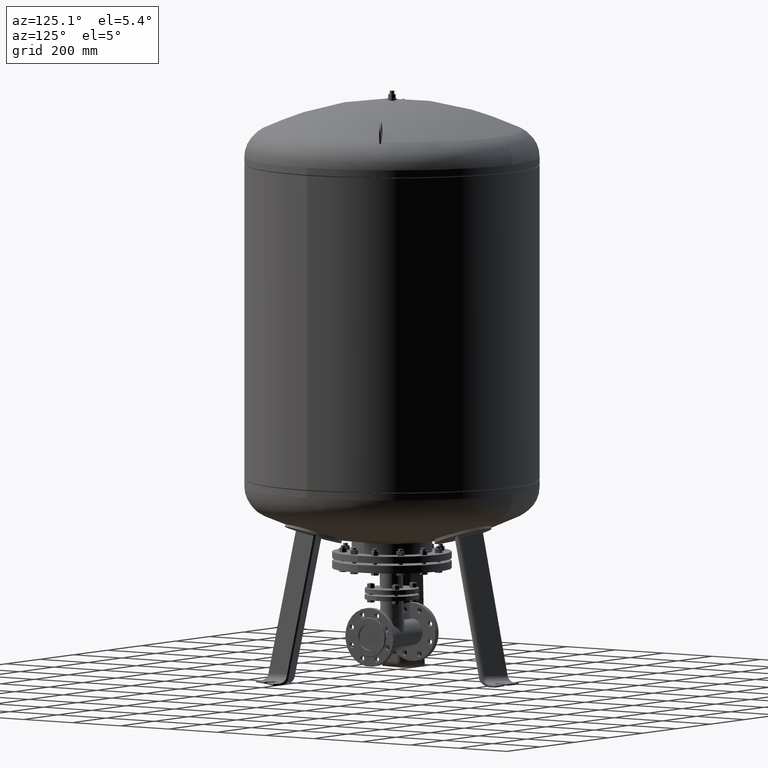
[diagram: clean part render]
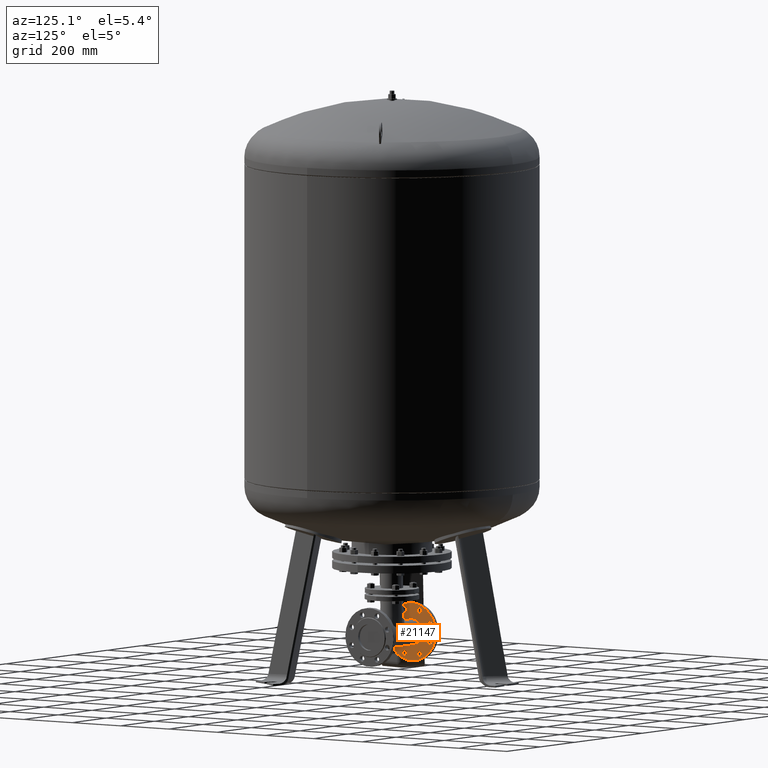
[diagram: same view with one face highlighted and labeled with its STEP entity id]
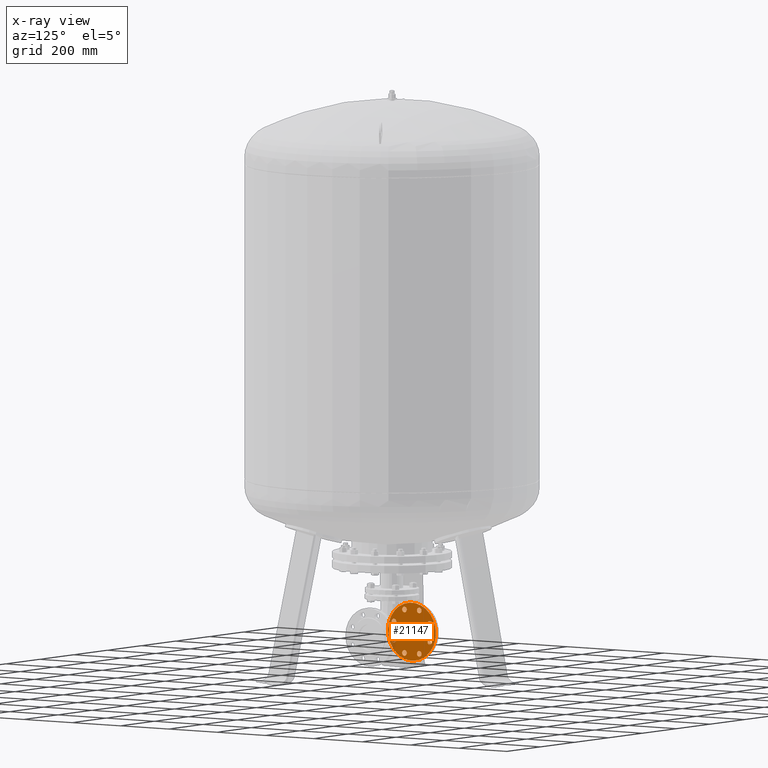
[diagram: x-ray of the same camera — body ghosted, the highlighted face saturated]
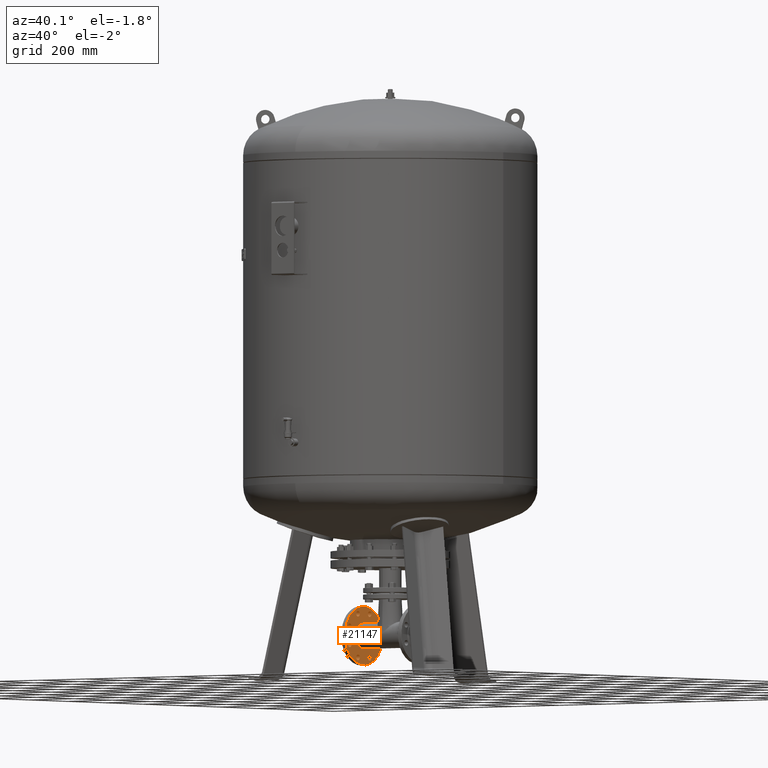
[diagram: same view with one face highlighted and labeled with its STEP entity id]
A machine part, auxiliary view. The second image highlights one B-rep face of the part: STEP entity #21147.
The next image is the same camera in x-ray: the body ghosted, the highlighted face saturated — about 7% of this face is hidden behind the body in this view.
A second angle (auxiliary view) of the same face is appended — the face is thin or edge-on in the first view.
In plain terms, the highlighted face is a freeform B-spline surface patch.
Its self-contained STEP definition (entity closure, byte-faithful):
#20154=CARTESIAN_POINT('',(-117.0,-34.250167196675491,215.133507042045720));
#20155=VERTEX_POINT('',#20154);
#20164=CARTESIAN_POINT('',(-117.000000000000010,-26.979181981738783,232.687218159760160));
#20165=VERTEX_POINT('',#20164);
#20166=CARTESIAN_POINT('',(-117.000000000000010,-30.614674589207137,223.910362600902940));
#20167=DIRECTION('',(1.000000000000000,7.029548E-017,1.697083E-016));
#20168=DIRECTION('',(1.836910E-016,-0.382683432365090,-0.923879532511287));
#20169=AXIS2_PLACEMENT_3D('',#20166,#20167,#20168);
#20170=CIRCLE('',#20169,9.500000000000000);
#20171=EDGE_CURVE('',#20155,#20165,#20170,.T.);
#20217=CARTESIAN_POINT('',(-117.0,-77.545855208371279,171.837819030350000));
#20218=VERTEX_POINT('',#20217);
#20227=CARTESIAN_POINT('',(-117.0,-70.274869993434578,189.391530148064450));
#20228=VERTEX_POINT('',#20227);
#20229=CARTESIAN_POINT('',(-117.0,-73.910362600902928,180.614674589207230));
#20230=DIRECTION('',(1.000000000000000,7.029548E-017,1.697083E-016));
#20231=DIRECTION('',(1.836910E-016,-0.382683432365090,-0.923879532511287));
#20232=AXIS2_PLACEMENT_3D('',#20229,#20230,#20231);
#20233=CIRCLE('',#20232,9.500000000000000);
#20234=EDGE_CURVE('',#20218,#20228,#20233,.T.);
#20280=CARTESIAN_POINT('',(-116.999999999999990,-77.545855208371307,110.608469851935620));
#20281=VERTEX_POINT('',#20280);
#20290=CARTESIAN_POINT('',(-116.999999999999990,-70.274869993434606,128.162180969650080));
#20291=VERTEX_POINT('',#20290);
#20292=CARTESIAN_POINT('',(-116.999999999999990,-73.910362600902957,119.385325410792860));
#20293=DIRECTION('',(1.000000000000000,7.029548E-017,1.697083E-016));
#20294=DIRECTION('',(1.836910E-016,-0.382683432365090,-0.923879532511287));
#20295=AXIS2_PLACEMENT_3D('',#20292,#20293,#20294);
#20296=CIRCLE('',#20295,9.500000000000000);
#20297=EDGE_CURVE('',#20281,#20291,#20296,.T.);
#20343=CARTESIAN_POINT('',(-116.999999999999990,-34.250167196675619,67.312781840239865));
#20344=VERTEX_POINT('',#20343);
#20353=CARTESIAN_POINT('',(-116.999999999999990,-26.979181981738918,84.866492957954307));
#20354=VERTEX_POINT('',#20353);
#20355=CARTESIAN_POINT('',(-116.999999999999990,-30.614674589207269,76.089637399097086));
#20356=DIRECTION('',(1.000000000000000,7.029548E-017,1.697083E-016));
#20357=DIRECTION('',(1.836910E-016,-0.382683432365090,-0.923879532511287));
#20358=AXIS2_PLACEMENT_3D('',#20355,#20356,#20357);
#20359=CIRCLE('',#20358,9.500000000000000);
#20360=EDGE_CURVE('',#20344,#20354,#20359,.T.);
#20406=CARTESIAN_POINT('',(-116.999999999999990,26.979181981738751,67.312781840239808));
#20407=VERTEX_POINT('',#20406);
#20416=CARTESIAN_POINT('',(-116.999999999999990,34.250167196675456,84.866492957954250));
#20417=VERTEX_POINT('',#20416);
#20418=CARTESIAN_POINT('',(-116.999999999999990,30.614674589207102,76.089637399097029));
#20419=DIRECTION('',(1.000000000000000,7.029548E-017,1.697083E-016));
#20420=DIRECTION('',(1.836910E-016,-0.382683432365090,-0.923879532511287));
#20421=AXIS2_PLACEMENT_3D('',#20418,#20419,#20420);
#20422=CIRCLE('',#20421,9.500000000000000);
#20423=EDGE_CURVE('',#20407,#20417,#20422,.T.);
#20469=CARTESIAN_POINT('',(-117.0,70.274869993434592,110.608469851935600));
#20470=VERTEX_POINT('',#20469);
#20479=CARTESIAN_POINT('',(-117.0,77.545855208371293,128.162180969650050));
#20480=VERTEX_POINT('',#20479);
#20481=CARTESIAN_POINT('',(-117.0,73.910362600902943,119.385325410792820));
#20482=DIRECTION('',(1.000000000000000,7.029548E-017,1.697083E-016));
#20483=DIRECTION('',(1.836910E-016,-0.382683432365090,-0.923879532511287));
#20484=AXIS2_PLACEMENT_3D('',#20481,#20482,#20483);
#20485=CIRCLE('',#20484,9.500000000000000);
#20486=EDGE_CURVE('',#20470,#20480,#20485,.T.);
#20532=CARTESIAN_POINT('',(-117.0,70.274869993434592,171.837819030349950));
#20533=VERTEX_POINT('',#20532);
#20542=CARTESIAN_POINT('',(-117.000000000000010,77.545855208371293,189.391530148064390));
#20543=VERTEX_POINT('',#20542);
#20544=CARTESIAN_POINT('',(-117.000000000000010,73.910362600902943,180.614674589207170));
#20545=DIRECTION('',(1.000000000000000,7.029548E-017,1.697083E-016));
#20546=DIRECTION('',(1.836910E-016,-0.382683432365090,-0.923879532511287));
#20547=AXIS2_PLACEMENT_3D('',#20544,#20545,#20546);
#20548=CIRCLE('',#20547,9.500000000000000);
#20549=EDGE_CURVE('',#20533,#20543,#20548,.T.);
#20595=CARTESIAN_POINT('',(-117.000000000000010,26.979181981738854,215.133507042045720));
#20596=VERTEX_POINT('',#20595);
#20605=CARTESIAN_POINT('',(-117.000000000000010,34.250167196675562,232.687218159760160));
#20606=VERTEX_POINT('',#20605);
#20607=CARTESIAN_POINT('',(-117.000000000000010,30.614674589207208,223.910362600902940));
#20608=DIRECTION('',(1.000000000000000,7.029548E-017,1.697083E-016));
#20609=DIRECTION('',(1.836910E-016,-0.382683432365090,-0.923879532511287));
#20610=AXIS2_PLACEMENT_3D('',#20607,#20608,#20609);
#20611=CIRCLE('',#20610,9.500000000000000);
#20612=EDGE_CURVE('',#20596,#20606,#20611,.T.);
#20893=CARTESIAN_POINT('',(-116.999999999999990,-37.885659804143891,58.535926281382615));
#20894=VERTEX_POINT('',#20893);
#20903=CARTESIAN_POINT('',(-117.0,37.885659804143884,241.464073718617410));
#20904=VERTEX_POINT('',#20903);
#20912=CARTESIAN_POINT('',(-117.0,1.335614E-015,150.0));
#20913=DIRECTION('',(1.000000000000000,7.029548E-017,1.697083E-016));
#20914=DIRECTION('',(-1.836910E-016,0.382683432365083,0.923879532511289));
#20915=AXIS2_PLACEMENT_3D('',#20912,#20913,#20914);
#20916=CIRCLE('',#20915,98.999999999999986);
#20917=EDGE_CURVE('',#20894,#20904,#20916,.T.);
#21001=CARTESIAN_POINT('',(-117.0,1.335614E-015,150.0));
#21002=DIRECTION('',(1.000000000000000,7.029548E-017,1.697083E-016));
#21003=DIRECTION('',(-1.836910E-016,0.382683432365083,0.923879532511289));
#21004=AXIS2_PLACEMENT_3D('',#21001,#21002,#21003);
#21005=CIRCLE('',#21004,98.999999999999986);
#21006=EDGE_CURVE('',#20904,#20894,#21005,.T.);
#21058=CARTESIAN_POINT('',(-117.000000000000030,169.003571337468200,220.003571337468230));
#21059=CARTESIAN_POINT('',(-116.999999999999990,70.003571337468173,-19.003571337468230));
#21060=CARTESIAN_POINT('',(-117.000000000000030,-70.003571337468230,319.003571337468260));
#21061=CARTESIAN_POINT('',(-116.999999999999970,-169.003571337468260,79.996428662531770));
#21062=B_SPLINE_SURFACE_WITH_KNOTS('',1,1,((#21058,#21060),(#21059,#21061)),.UNSPECIFIED.,.F.,.F.,.U.,(2,2),(2,2),(0.0,258.699467045522620),(0.0,258.699467045522570),.UNSPECIFIED.);
#21063=ORIENTED_EDGE('',*,*,#20917,.T.);
#21064=ORIENTED_EDGE('',*,*,#21006,.T.);
#21065=EDGE_LOOP('',(#21063,#21064));
#21066=FACE_OUTER_BOUND('',#21065,.T.);
#21067=ORIENTED_EDGE('',*,*,#20171,.F.);
#21068=CARTESIAN_POINT('',(-117.000000000000010,-30.614674589207137,223.910362600902940));
#21069=DIRECTION('',(1.000000000000000,7.029548E-017,1.697083E-016));
#21070=DIRECTION('',(1.836910E-016,-0.382683432365090,-0.923879532511287));
#21071=AXIS2_PLACEMENT_3D('',#21068,#21069,#21070);
#21072=CIRCLE('',#21071,9.500000000000000);
#21073=EDGE_CURVE('',#20165,#20155,#21072,.T.);
#21074=ORIENTED_EDGE('',*,*,#21073,.F.);
#21075=EDGE_LOOP('',(#21067,#21074));
#21076=FACE_BOUND('',#21075,.T.);
#21077=ORIENTED_EDGE('',*,*,#20234,.F.);
#21078=CARTESIAN_POINT('',(-117.0,-73.910362600902928,180.614674589207230));
#21079=DIRECTION('',(1.000000000000000,7.029548E-017,1.697083E-016));
#21080=DIRECTION('',(1.836910E-016,-0.382683432365090,-0.923879532511287));
#21081=AXIS2_PLACEMENT_3D('',#21078,#21079,#21080);
#21082=CIRCLE('',#21081,9.500000000000000);
#21083=EDGE_CURVE('',#20228,#20218,#21082,.T.);
#21084=ORIENTED_EDGE('',*,*,#21083,.F.);
#21085=EDGE_LOOP('',(#21077,#21084));
#21086=FACE_BOUND('',#21085,.T.);
#21087=ORIENTED_EDGE('',*,*,#20297,.F.);
#21088=CARTESIAN_POINT('',(-116.999999999999990,-73.910362600902957,119.385325410792860));
#21089=DIRECTION('',(1.000000000000000,7.029548E-017,1.697083E-016));
#21090=DIRECTION('',(1.836910E-016,-0.382683432365090,-0.923879532511287));
#21091=AXIS2_PLACEMENT_3D('',#21088,#21089,#21090);
#21092=CIRCLE('',#21091,9.500000000000000);
#21093=EDGE_CURVE('',#20291,#20281,#21092,.T.);
#21094=ORIENTED_EDGE('',*,*,#21093,.F.);
#21095=EDGE_LOOP('',(#21087,#21094));
#21096=FACE_BOUND('',#21095,.T.);
#21097=ORIENTED_EDGE('',*,*,#20360,.F.);
#21098=CARTESIAN_POINT('',(-116.999999999999990,-30.614674589207269,76.089637399097086));
#21099=DIRECTION('',(1.000000000000000,7.029548E-017,1.697083E-016));
#21100=DIRECTION('',(1.836910E-016,-0.382683432365090,-0.923879532511287));
#21101=AXIS2_PLACEMENT_3D('',#21098,#21099,#21100);
#21102=CIRCLE('',#21101,9.500000000000000);
#21103=EDGE_CURVE('',#20354,#20344,#21102,.T.);
#21104=ORIENTED_EDGE('',*,*,#21103,.F.);
#21105=EDGE_LOOP('',(#21097,#21104));
#21106=FACE_BOUND('',#21105,.T.);
#21107=ORIENTED_EDGE('',*,*,#20423,.F.);
#21108=CARTESIAN_POINT('',(-116.999999999999990,30.614674589207102,76.089637399097029));
#21109=DIRECTION('',(1.000000000000000,7.029548E-017,1.697083E-016));
#21110=DIRECTION('',(1.836910E-016,-0.382683432365090,-0.923879532511287));
#21111=AXIS2_PLACEMENT_3D('',#21108,#21109,#21110);
#21112=CIRCLE('',#21111,9.500000000000000);
#21113=EDGE_CURVE('',#20417,#20407,#21112,.T.);
#21114=ORIENTED_EDGE('',*,*,#21113,.F.);
#21115=EDGE_LOOP('',(#21107,#21114));
#21116=FACE_BOUND('',#21115,.T.);
#21117=ORIENTED_EDGE('',*,*,#20486,.F.);
#21118=CARTESIAN_POINT('',(-117.0,73.910362600902943,119.385325410792820));
#21119=DIRECTION('',(1.000000000000000,7.029548E-017,1.697083E-016));
#21120=DIRECTION('',(1.836910E-016,-0.382683432365090,-0.923879532511287));
#21121=AXIS2_PLACEMENT_3D('',#21118,#21119,#21120);
#21122=CIRCLE('',#21121,9.500000000000000);
#21123=EDGE_CURVE('',#20480,#20470,#21122,.T.);
#21124=ORIENTED_EDGE('',*,*,#21123,.F.);
#21125=EDGE_LOOP('',(#21117,#21124));
#21126=FACE_BOUND('',#21125,.T.);
#21127=ORIENTED_EDGE('',*,*,#20549,.F.);
#21128=CARTESIAN_POINT('',(-117.000000000000010,73.910362600902943,180.614674589207170));
#21129=DIRECTION('',(1.000000000000000,7.029548E-017,1.697083E-016));
#21130=DIRECTION('',(1.836910E-016,-0.382683432365090,-0.923879532511287));
#21131=AXIS2_PLACEMENT_3D('',#21128,#21129,#21130);
#21132=CIRCLE('',#21131,9.500000000000000);
#21133=EDGE_CURVE('',#20543,#20533,#21132,.T.);
#21134=ORIENTED_EDGE('',*,*,#21133,.F.);
#21135=EDGE_LOOP('',(#21127,#21134));
#21136=FACE_BOUND('',#21135,.T.);
#21137=ORIENTED_EDGE('',*,*,#20612,.F.);
#21138=CARTESIAN_POINT('',(-117.000000000000010,30.614674589207208,223.910362600902940));
#21139=DIRECTION('',(1.000000000000000,7.029548E-017,1.697083E-016));
#21140=DIRECTION('',(1.836910E-016,-0.382683432365090,-0.923879532511287));
#21141=AXIS2_PLACEMENT_3D('',#21138,#21139,#21140);
#21142=CIRCLE('',#21141,9.500000000000000);
#21143=EDGE_CURVE('',#20606,#20596,#21142,.T.);
#21144=ORIENTED_EDGE('',*,*,#21143,.F.);
#21145=EDGE_LOOP('',(#21137,#21144));
#21146=FACE_BOUND('',#21145,.T.);
#21147=ADVANCED_FACE('',(#21066,#21076,#21086,#21096,#21106,#21116,#21126,#21136,#21146),#21062,.F.);